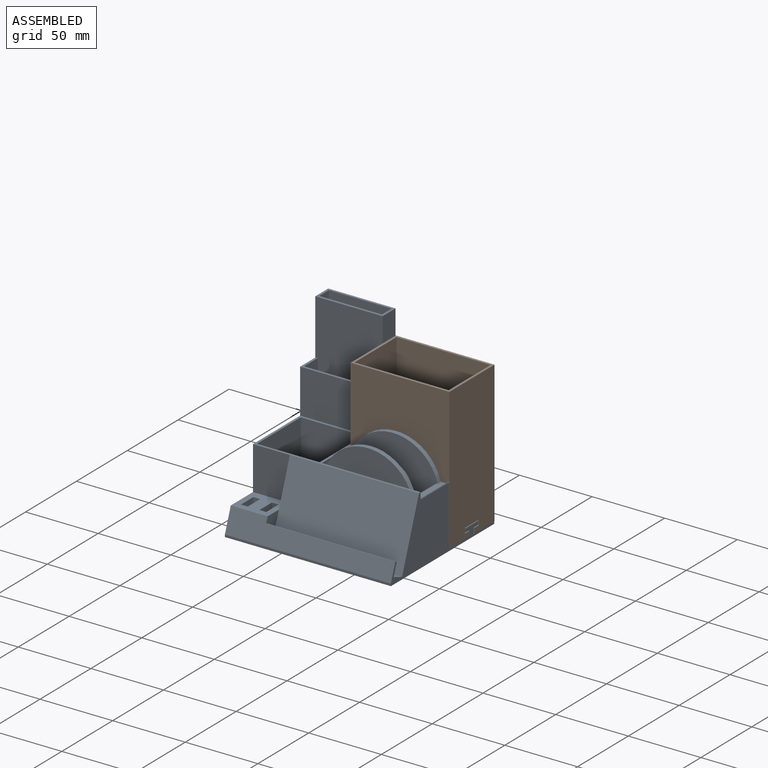
[diagram: assembled view]
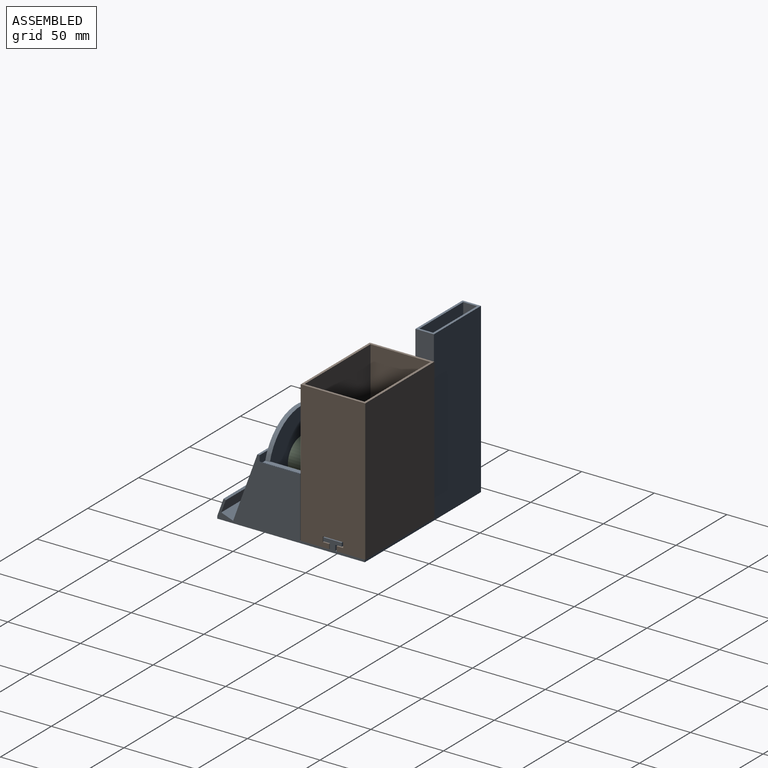
[diagram: assembled view, second angle]
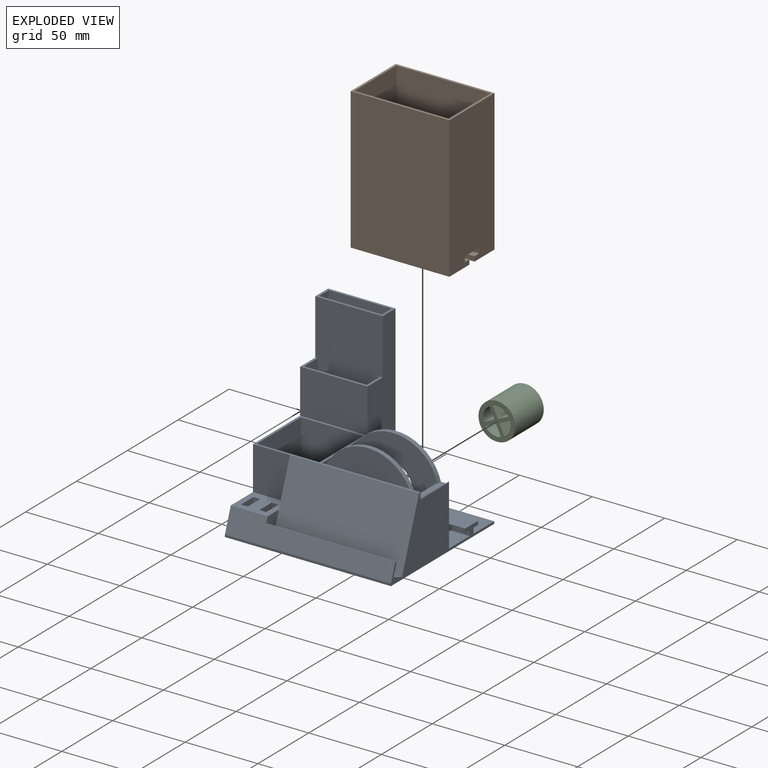
[diagram: exploded view]
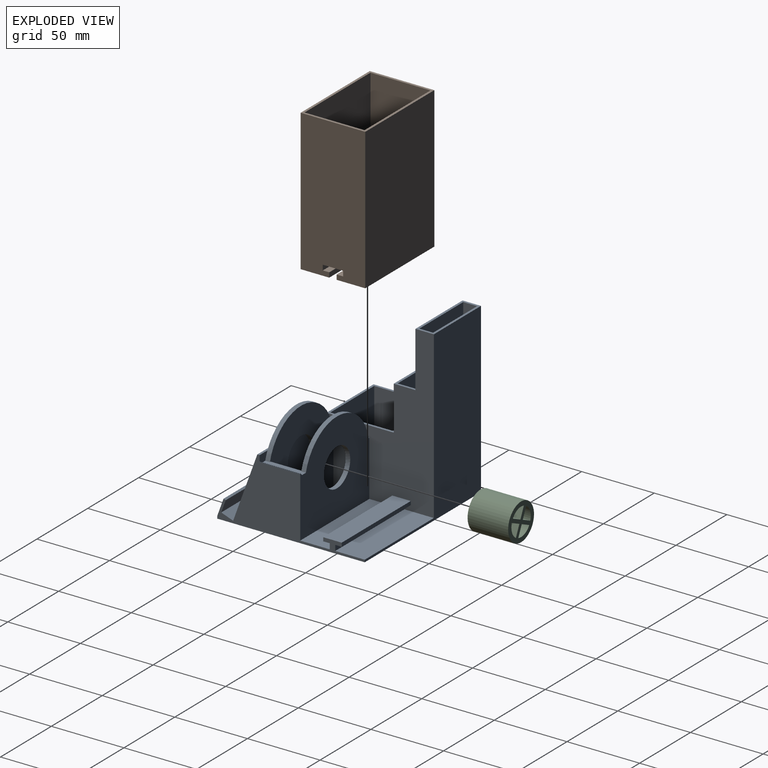
[diagram: exploded view, second angle]
ASSEMBLY  parts=3 mates=2
PART A: 133 faces, bbox 114.3x101.6x115.9 mm
  f0: plane 67.95x20.32mm, normal (0,0,1), area 1380.6mm2, adj f1,f21,f47,f112
  f1: plane 114.3x72.39mm, normal (1,0,0), area 4346.8mm2, adj f0,f9,f10,f11,f13,f15,f19,f27
  f2: plane 114.3x43.18mm, normal (0,1,0), area 4935.5mm2, adj f4,f5,f6,f106
  f3: plane 114.3x43.18mm, normal (0,-1,0), area 4935.5mm2, adj f4,f5,f6,f106
  f4: plane 43.18x9.53mm, normal (0,0,1), area 411.3mm2, adj f2,f3,f5,f6
  f5: plane 114.3x9.53mm, normal (-1,0,0), area 1088.7mm2, adj f2,f3,f4,f106
  f6: plane 114.3x9.53mm, normal (1,0,0), area 1088.7mm2, adj f2,f3,f4,f106
  f7: plane 76.2x13.34mm, normal (1,0,0), area 1016.1mm2, adj f102,f103,f104,f105
  f8: plane 76.2x13.34mm, normal (-1,0,0), area 1016.1mm2, adj f102,f103,f104,f105
  f9: plane 67.95x20.32mm, normal (0,0,1), area 1380.6mm2, adj f1,f19,f21,f113
  f10: plane 7.62x3.24mm, normal (0,1,0), area 13.4mm2, adj f1,f11,f27,f96
  f11: plane 3.18x0.64mm, normal (0,0,1), area 2mm2, adj f1,f10,f49,f96
  f12: plane 27.94x4.55mm, normal (0,0,1), area 122.3mm2, adj f14,f29,f47,f48,f49,f50,f95,f96
  f13: plane 3.18x0.64mm, normal (0,0,1), area 2mm2, adj f1,f47,f48,f95
  f14: plane 40.11x21.59mm, normal (-1,0,0), area 866.1mm2, adj f12,f15,f48,f49
  f15: plane 61.6x21.59mm, normal (0,0,1), area 1329.8mm2, adj f1,f14,f48,f49
  f16: plane 114.3x1.59mm, normal (0,-1,0), area 181.5mm2, adj f20,f21,f22,f35
  f17: plane 25.4x21.84mm, normal (0,0,1), area 440.3mm2, adj f18,f20,f31,f35,f36,f38,f39,f40
  f18: plane 29.85x25.4mm, normal (0,-1,0), area 758.1mm2, adj f17,f20,f27,f31
  f19: plane 115.89x114.3mm, normal (0,1,0), area 5479.8mm2, adj f1,f9,f20,f21,f22,f106
  f20: plane 115.89x101.6mm, normal (-1,0,0), area 5262mm2, adj f16,f17,f18,f19,f22,f27,f35,f101
  f21: plane 101.6x47.31mm, normal (1,0,0), area 1850.2mm2, adj f0,f9,f16,f19,f22,f27,f29,f30
  f22: plane 114.3x101.6mm, normal (0,0,-1), area 11612.9mm2, adj f16,f19,f20,f21
  f23: plane 45.72x43.18mm, normal (0,1,0), area 1974.2mm2, adj f24,f26,f27,f28
  f24: plane 45.72x43.18mm, normal (1,0,0), area 1974.2mm2, adj f23,f25,f27,f28
  f25: plane 45.72x43.18mm, normal (0,-1,0), area 1974.2mm2, adj f24,f26,f27,f28
  f26: plane 45.72x43.18mm, normal (-1,0,0), area 1974.2mm2, adj f23,f25,f27,f28
  f27: plane 114.3x46.36mm, normal (0,0,1), area 392.1mm2, adj f1,f10,f18,f20,f21,f23,f24,f25
  f28: plane 43.18x43.18mm, normal (0,0,1), area 1864.5mm2, adj f23,f24,f25,f26
  f29: plane 7.68x5.61mm, normal (0,1,0), area 35mm2, adj f12,f21,f27,f50,f96
  f30: plane 88.9x45.72mm, normal (0,-0.94,0.34), area 4325.4mm2, adj f21,f27,f31,f32,f36
  f31: plane 29.85x10.86mm, normal (-1,0,0), area 162.1mm2, adj f17,f18,f30
  f32: plane 88.9x8.21mm, normal (0,0.34,0.94), area 776.3mm2, adj f21,f30,f33,f36
  f33: plane 88.9x8.4mm, normal (0,0.94,-0.34), area 795.1mm2, adj f21,f32,f34,f36
  f34: plane 88.9x1.49mm, normal (0,0.34,0.94), area 141.1mm2, adj f21,f33,f35,f36
  f35: plane 114.3x15.88mm, normal (0,-0.94,0.34), area 1558.1mm2, adj f16,f17,f20,f21,f34,f36
  f36: plane 15.88x13.98mm, normal (1,0,0), area 140.8mm2, adj f17,f30,f32,f33,f34,f35
  f37: plane 12.19x4.7mm, normal (0,0,1), area 57.3mm2, adj f38,f39,f40,f41
  f38: plane 15.88x12.19mm, normal (-1,0,0), area 193.5mm2, adj f17,f37,f39,f41
  f39: plane 15.88x4.7mm, normal (0,-1,0), area 74.6mm2, adj f17,f37,f38,f40
  f40: plane 15.88x12.19mm, normal (1,0,0), area 193.5mm2, adj f17,f37,f39,f41
  f41: plane 15.88x4.7mm, normal (0,1,0), area 74.6mm2, adj f17,f37,f38,f40
  f42: plane 12.19x4.7mm, normal (0,0,1), area 57.3mm2, adj f43,f44,f45,f46
  f43: plane 15.88x12.19mm, normal (-1,0,0), area 193.5mm2, adj f17,f42,f44,f46
  f44: plane 15.88x4.7mm, normal (0,-1,0), area 74.6mm2, adj f17,f42,f43,f45
  f45: plane 15.88x12.19mm, normal (1,0,0), area 193.5mm2, adj f17,f42,f44,f46
  f46: plane 15.88x4.7mm, normal (0,1,0), area 74.6mm2, adj f17,f42,f43,f45
  f47: plane 67.95x63.5mm, normal (0,1,0), area 3251.6mm2, adj f0,f1,f12,f13,f21,f50,f95,f100
  f48: plane 63.5x62.38mm, normal (0,-1,0), area 2995.3mm2, adj f1,f12,f13,f14,f15,f95,f100
  f49: plane 63.5x62.38mm, normal (0,1,0), area 2995.3mm2, adj f1,f11,f12,f14,f15,f96,f99
  f50: plane 27.94x1.8mm, normal (-0.71,0,0.71), area 49.2mm2, adj f12,f29,f47,f51,f52,f53,f54,f55
  f51: plane 1.1x1.1mm, normal (0,0.87,0.5), area 0.7mm2, adj f21,f50,f52
  f52: plane 1.1x1.1mm, normal (0,-0.87,0.5), area 0.7mm2, adj f21,f50,f51
  f53: plane 1.1x1.1mm, normal (0,0.87,0.5), area 0.7mm2, adj f21,f50,f54
  f54: plane 1.1x1.1mm, normal (0,-0.87,0.5), area 0.7mm2, adj f21,f50,f53
  f55: plane 1.1x1.1mm, normal (0,0.87,0.5), area 0.7mm2, adj f21,f50,f56
  f56: plane 1.1x1.1mm, normal (0,-0.87,0.5), area 0.7mm2, adj f21,f50,f55
  f57: plane 1.1x1.1mm, normal (0,0.87,0.5), area 0.7mm2, adj f21,f50,f58
  f58: plane 1.1x1.1mm, normal (0,-0.87,0.5), area 0.7mm2, adj f21,f50,f57
  f59: plane 1.1x1.1mm, normal (0,0.87,0.5), area 0.7mm2, adj f21,f50,f60
  f60: plane 1.1x1.1mm, normal (0,-0.87,0.5), area 0.7mm2, adj f21,f50,f59
  f61: plane 1.1x1.1mm, normal (0,0.87,0.5), area 0.7mm2, adj f21,f50,f62
  f62: plane 1.1x1.1mm, normal (0,-0.87,0.5), area 0.7mm2, adj f21,f50,f61
  f63: plane 1.1x1.1mm, normal (0,0.87,0.5), area 0.7mm2, adj f21,f50,f64
  f64: plane 1.1x1.1mm, normal (0,-0.87,0.5), area 0.7mm2, adj f21,f50,f63
  f65: plane 1.1x1.1mm, normal (0,0.87,0.5), area 0.7mm2, adj f21,f50,f66
  f66: plane 1.1x1.1mm, normal (0,-0.87,0.5), area 0.7mm2, adj f21,f50,f65
  f67: plane 1.1x1.1mm, normal (0,0.87,0.5), area 0.7mm2, adj f21,f50,f68
  f68: plane 1.1x1.1mm, normal (0,-0.87,0.5), area 0.7mm2, adj f21,f50,f67
  f69: plane 1.1x1.1mm, normal (0,0.87,0.5), area 0.7mm2, adj f21,f50,f70
  f70: plane 1.1x1.1mm, normal (0,-0.87,0.5), area 0.7mm2, adj f21,f50,f69
  f71: plane 1.1x1.1mm, normal (0,0.87,0.5), area 0.7mm2, adj f21,f50,f72
  f72: plane 1.1x1.1mm, normal (0,-0.87,0.5), area 0.7mm2, adj f21,f50,f71
  f73: plane 1.1x1.1mm, normal (0,0.87,0.5), area 0.7mm2, adj f21,f50,f74
  f74: plane 1.1x1.1mm, normal (0,-0.87,0.5), area 0.7mm2, adj f21,f50,f73
  f75: plane 1.1x1.1mm, normal (0,0.87,0.5), area 0.7mm2, adj f21,f50,f76
  f76: plane 1.1x1.1mm, normal (0,-0.87,0.5), area 0.7mm2, adj f21,f50,f75
  f77: plane 1.1x1.1mm, normal (0,0.87,0.5), area 0.7mm2, adj f21,f50,f78
  f78: plane 1.1x1.1mm, normal (0,-0.87,0.5), area 0.7mm2, adj f21,f50,f77
  f79: plane 1.1x1.1mm, normal (0,0.87,0.5), area 0.7mm2, adj f21,f50,f80
  f80: plane 1.1x1.1mm, normal (0,-0.87,0.5), area 0.7mm2, adj f21,f50,f79
  f81: plane 1.1x1.1mm, normal (0,0.87,0.5), area 0.7mm2, adj f21,f50,f82
  f82: plane 1.1x1.1mm, normal (0,-0.87,0.5), area 0.7mm2, adj f21,f50,f81
  f83: plane 1.1x1.1mm, normal (0,0.87,0.5), area 0.7mm2, adj f21,f50,f84
  f84: plane 1.1x1.1mm, normal (0,-0.87,0.5), area 0.7mm2, adj f21,f50,f83
  f85: plane 1.1x1.1mm, normal (0,0.87,0.5), area 0.7mm2, adj f21,f50,f86
  f86: plane 1.1x1.1mm, normal (0,-0.87,0.5), area 0.7mm2, adj f21,f50,f85
  f87: plane 1.1x1.1mm, normal (0,0.87,0.5), area 0.7mm2, adj f21,f50,f88
  f88: plane 1.1x1.1mm, normal (0,-0.87,0.5), area 0.7mm2, adj f21,f50,f87
  f89: plane 1.1x1.1mm, normal (0,0.87,0.5), area 0.7mm2, adj f21,f50,f90
  f90: plane 1.1x1.1mm, normal (0,-0.87,0.5), area 0.7mm2, adj f21,f50,f89
  f91: plane 1.1x1.1mm, normal (0,0.87,0.5), area 0.7mm2, adj f21,f50,f92
  f92: plane 1.1x1.1mm, normal (0,-0.87,0.5), area 0.7mm2, adj f21,f50,f91
  f93: plane 1.1x1.1mm, normal (0,0.87,0.5), area 0.7mm2, adj f21,f50,f94
  f94: plane 1.1x1.1mm, normal (0,-0.87,0.5), area 0.7mm2, adj f21,f50,f93
  f95: cylinder r=31.75mm len=61.74mm, axis (0,1,0), area 269.5mm2, adj f12,f13,f47,f48
  f96: cylinder r=31.75mm len=61.74mm, axis (0,-1,0), area 269.5mm2, adj f10,f11,f12,f29,f49,f97
  f97: plane 57.02x17.78mm, normal (0,-1,0), area 725.9mm2, adj f27,f96
  f98: plane 26.04x26.04mm, normal (0,1,0), area 532.4mm2, adj f99
  f99: cylinder r=13.02mm len=26.04mm, axis (0,1,0), area 259.7mm2, adj f49,f98
  f100: cylinder r=13.02mm len=26.04mm, axis (0,1,0), area 259.7mm2, adj f47,f48
  f101: plane 46.36x30.48mm, normal (0,-1,0), area 1412.9mm2, adj f1,f20,f27,f103
  f102: plane 76.2x43.18mm, normal (0,1,0), area 3290.3mm2, adj f7,f8,f103,f104
  f103: plane 46.36x14.92mm, normal (0,0,1), area 115.9mm2, adj f1,f7,f8,f20,f101,f102,f105
  f104: plane 43.18x13.34mm, normal (0,0,1), area 575.8mm2, adj f7,f8,f102,f105
  f105: plane 114.3x46.36mm, normal (0,-1,0), area 5056.4mm2, adj f1,f7,f8,f20,f103,f104,f106
  f106: plane 46.36x12.7mm, normal (0,0,1), area 177.4mm2, adj f1,f2,f3,f5,f6,f19,f20,f105
  f107: plane 67.95x4.45mm, normal (0,0,-1), area 302mm2, adj f1,f21,f108,f113
  f108: plane 67.95x2.54mm, normal (0,1,0), area 172.6mm2, adj f1,f21,f107,f109
  f109: plane 67.95x12.7mm, normal (0,0,1), area 862.9mm2, adj f1,f21,f108,f110
  f110: plane 67.95x2.54mm, normal (0,-1,0), area 172.6mm2, adj f1,f21,f109,f111
  f111: plane 67.95x4.45mm, normal (0,0,-1), area 302mm2, adj f1,f21,f110,f112
  f112: plane 67.95x3.81mm, normal (0,-1,0), area 258.9mm2, adj f0,f1,f21,f111
  f113: plane 67.95x3.81mm, normal (0,1,0), area 258.9mm2, adj f1,f9,f21,f107
  f114: plane 22.23x14.29mm, normal (0,0.94,-0.34), area 337.9mm2, adj f124,f125,f126,f127
  f115: plane 22.23x14.29mm, normal (0,-1,0), area 317.5mm2, adj f124,f125,f126,f127
  f116: plane 15.37x14.29mm, normal (1,0,0), area 219.6mm2, adj f117,f119,f124,f125
  f117: plane 14.29x7.87mm, normal (0,-1,0), area 112.5mm2, adj f116,f118,f124,f125
  f118: plane 15.37x14.29mm, normal (-1,0,0), area 219.6mm2, adj f117,f119,f124,f125
  f119: plane 14.29x7.87mm, normal (0,1,0), area 112.5mm2, adj f116,f118,f124,f125
  f120: plane 15.37x14.29mm, normal (1,0,0), area 219.6mm2, adj f121,f123,f124,f125
  f121: plane 14.29x7.87mm, normal (0,-1,0), area 112.5mm2, adj f120,f122,f124,f125
  f122: plane 15.37x14.29mm, normal (-1,0,0), area 219.6mm2, adj f121,f123,f124,f125
  f123: plane 14.29x7.87mm, normal (0,1,0), area 112.5mm2, adj f120,f122,f124,f125
  f124: plane 24.45x22.23mm, normal (0,0,1), area 301.3mm2, adj f114,f115,f116,f117,f118,f119,f120,f121
  f125: plane 22.23x19.25mm, normal (0,0,-1), area 185.8mm2, adj f114,f115,f116,f117,f118,f119,f120,f121
  f126: plane 24.45x14.29mm, normal (1,0,0), area 312.1mm2, adj f114,f115,f124,f125
  f127: plane 24.45x14.29mm, normal (-1,0,0), area 312.1mm2, adj f114,f115,f124,f125
  f128: plane 41.08x14.95mm, normal (1,0,0), area 307.1mm2, adj f130,f131,f132
  f129: plane 41.08x14.95mm, normal (-1,0,0), area 307.1mm2, adj f130,f131,f132
  f130: plane 85.73x41.08mm, normal (0,0.94,-0.34), area 3747.4mm2, adj f128,f129,f131,f132
  f131: plane 85.73x14.95mm, normal (0,0,1), area 1281.7mm2, adj f128,f129,f130,f132
  f132: plane 85.73x41.08mm, normal (0,-1,0), area 3521.5mm2, adj f128,f129,f130,f131
PART B: 19 faces, bbox 67.9x44.5x97.3 mm
  f0: plane 67.95x3.56mm, normal (0,-1,0), area 241.6mm2, adj f2,f4,f6,f18
  f1: plane 67.95x3.56mm, normal (0,1,0), area 241.6mm2, adj f2,f4,f6,f16
  f2: plane 67.95x13.97mm, normal (0,0,-1), area 949.2mm2, adj f0,f1,f4,f6
  f3: plane 97.35x67.95mm, normal (0,1,0), area 6614.1mm2, adj f4,f6,f11,f14
  f4: plane 97.35x44.45mm, normal (-1,0,0), area 4260.6mm2, adj f0,f1,f2,f3,f5,f11,f13,f14
  f5: plane 97.35x67.95mm, normal (0,-1,0), area 6614.1mm2, adj f4,f6,f11,f13
  f6: plane 97.35x44.45mm, normal (1,0,0), area 4260.6mm2, adj f0,f1,f2,f3,f5,f11,f13,f14
  f7: plane 88.9x64.77mm, normal (0,-1,0), area 5758.1mm2, adj f8,f10,f11,f12
  f8: plane 88.9x41.28mm, normal (-1,0,0), area 3669.3mm2, adj f7,f9,f11,f12
  f9: plane 88.9x64.77mm, normal (0,1,0), area 5758.1mm2, adj f8,f10,f11,f12
  f10: plane 88.9x41.28mm, normal (1,0,0), area 3669.3mm2, adj f7,f9,f11,f12
  f11: plane 67.95x44.45mm, normal (0,0,1), area 346.8mm2, adj f3,f4,f5,f6,f7,f8,f9,f10
  f12: plane 64.77x41.28mm, normal (0,0,1), area 2673.4mm2, adj f7,f8,f9,f10
  f13: plane 67.95x19.69mm, normal (0,0,-1), area 1337.5mm2, adj f4,f5,f6,f15
  f14: plane 67.95x19.69mm, normal (0,0,-1), area 1337.5mm2, adj f3,f4,f6,f17
  f15: plane 67.95x3.3mm, normal (0,1,0), area 224.4mm2, adj f4,f6,f13,f16
  f16: plane 67.95x4.45mm, normal (0,0,1), area 302mm2, adj f1,f4,f6,f15
  f17: plane 67.95x3.3mm, normal (0,-1,0), area 224.4mm2, adj f4,f6,f14,f18
  f18: plane 67.95x4.45mm, normal (0,0,1), area 302mm2, adj f0,f4,f6,f17
PART C: 15 faces, bbox 25.4x27.9x25.4 mm
  f0: plane 27.94x8.17mm, normal (0,0,1), area 228.3mm2, adj f1,f8,f13,f14
  f1: cylinder r=9.53mm len=27.94mm, axis (0,1,0), area 346.9mm2, adj f0,f8,f13,f14
  f2: cylinder r=9.53mm len=27.94mm, axis (0,1,0), area 346.9mm2, adj f3,f9,f13,f14
  f3: plane 27.94x8.17mm, normal (0,0,-1), area 228.3mm2, adj f2,f9,f13,f14
  f4: plane 27.94x8.17mm, normal (0,0,1), area 228.3mm2, adj f5,f10,f13,f14
  f5: plane 27.94x8.17mm, normal (1,0,0), area 228.3mm2, adj f4,f10,f13,f14
  f6: plane 27.94x8.17mm, normal (1,0,0), area 228.3mm2, adj f7,f11,f13,f14
  f7: plane 27.94x8.17mm, normal (0,0,-1), area 228.3mm2, adj f6,f11,f13,f14
  f8: plane 27.94x8.17mm, normal (-1,0,0), area 228.3mm2, adj f0,f1,f13,f14
  f9: plane 27.94x8.17mm, normal (-1,0,0), area 228.3mm2, adj f2,f3,f13,f14
  f10: cylinder r=9.53mm len=27.94mm, axis (0,1,0), area 346.9mm2, adj f4,f5,f13,f14
  f11: cylinder r=9.53mm len=27.94mm, axis (0,1,0), area 346.9mm2, adj f6,f7,f13,f14
  f12: cylinder r=12.7mm len=27.94mm, axis (0,1,0), area 2229.5mm2, adj f13,f14
  f13: plane 25.4x25.4mm, normal (0,-1,0), area 311.7mm2, adj f0,f1,f2,f3,f4,f5,f6,f7
  f14: plane 25.4x25.4mm, normal (0,1,0), area 311.7mm2, adj f0,f1,f2,f3,f4,f5,f6,f7
PLACE A at identity fixed
PLACE B t=(23.18,28.89,8.45)mm
PLACE C rot(axis=(0,-1,0),24.5deg) t=(20.95,6.29,33.34)mm
MATE planar A.f0 <-> B.f13  axis (0,0,1) through (23.18,16.51,1.59)mm
MATE cylindrical C.f1 <-> A.f95  axis (0,1,0) through (20.95,-7.68,33.34)mm
